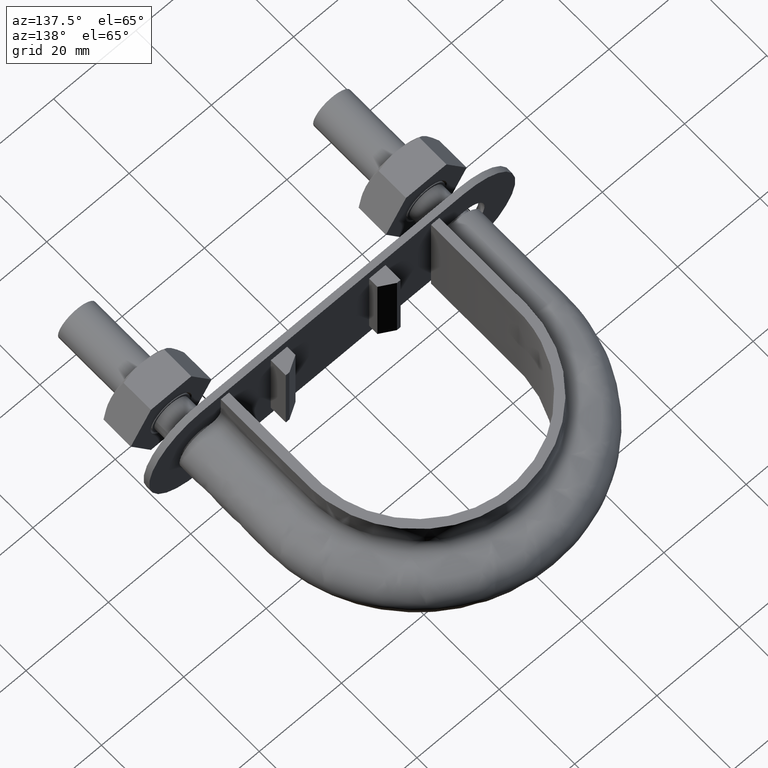
[diagram: clean part render]
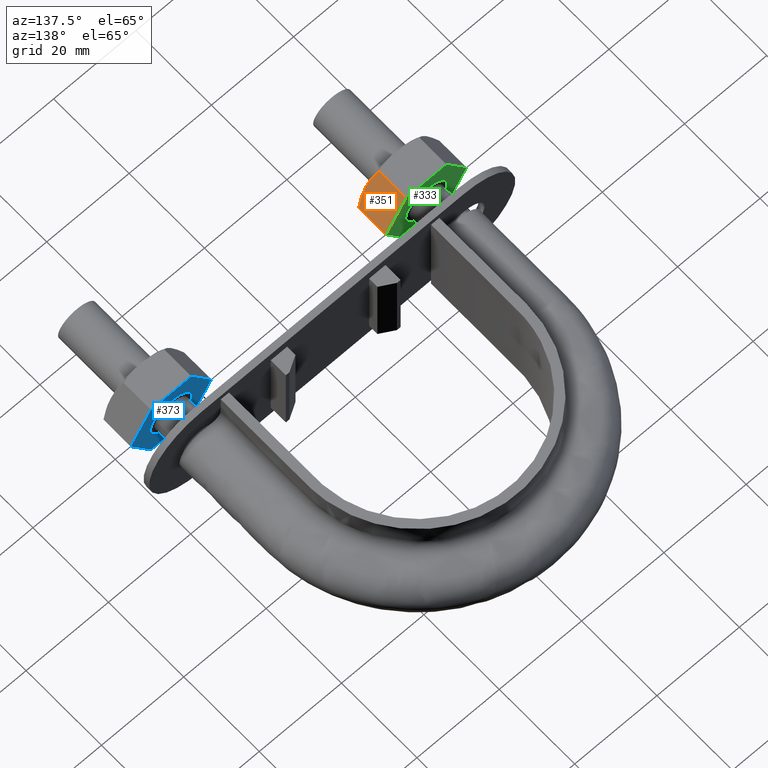
[diagram: same view with three faces highlighted in distinct colors, each labeled with its STEP entity id]
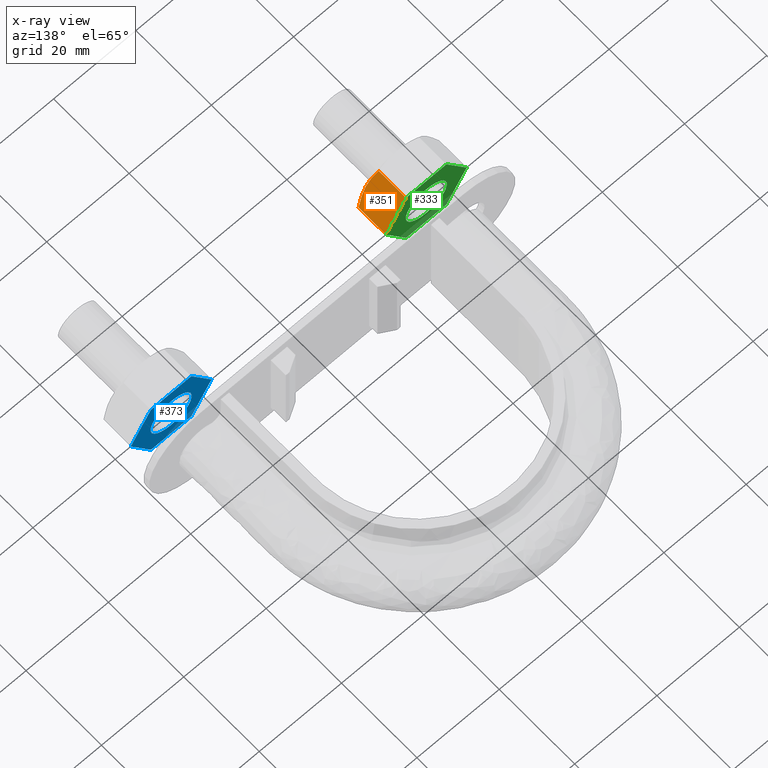
[diagram: x-ray of the same camera — body ghosted, the three highlighted faces saturated]
A machine part, auxiliary view with three faces highlighted in distinct colors.
The next image is the same camera in x-ray (body ghosted, the three faces saturated) — at least one of them is partly hidden behind the body in this view.
Their STEP definitions:

[orange] entity #351 — the highlighted planar face has unit normal (-0.866, 0, -0.5).
#351 = ADVANCED_FACE( '', ( #573 ), #574, .F. );
#573 = FACE_OUTER_BOUND( '', #1651, .T. );
#574 = PLANE( '', #1652 );
#1651 = EDGE_LOOP( '', ( #2314, #2315, #2316, #2317, #2318 ) );
#1652 = AXIS2_PLACEMENT_3D( '', #2319, #2320, #2321 );
#2314 = ORIENTED_EDGE( '', *, *, #2678, .F. );
#2315 = ORIENTED_EDGE( '', *, *, #2694, .F. );
#2316 = ORIENTED_EDGE( '', *, *, #2695, .F. );
#2317 = ORIENTED_EDGE( '', *, *, #2656, .F. );
#2318 = ORIENTED_EDGE( '', *, *, #2691, .F. );
#2319 = CARTESIAN_POINT( '', ( -26.0925227119590, 25.0000000000000, 8.50000000003917 ) );
#2320 = DIRECTION( '', ( -0.866025403780351, 3.65183836638166E-016, -0.500000000007081 ) );
#2321 = DIRECTION( '', ( -0.500000000007081, 2.02717751828322E-032, 0.866025403780351 ) );
#2656 = EDGE_CURVE( '', #2984, #2986, #2987, .T. );
#2678 = EDGE_CURVE( '', #3023, #3025, #3026, .T. );
#2691 = EDGE_CURVE( '', #3025, #2984, #3042, .T. );
#2694 = EDGE_CURVE( '', #3046, #3023, #3047, .T. );
#2695 = EDGE_CURVE( '', #2986, #3046, #3048, .F. );
#2984 = VERTEX_POINT( '', #3694 );
#2986 = VERTEX_POINT( '', #3696 );
#2987 = LINE( '', #3697, #3698 );
#3023 = VERTEX_POINT( '', #3765 );
#3025 = VERTEX_POINT( '', #3767 );
#3026 = B_SPLINE_CURVE_WITH_KNOTS( '', 3, ( #3768, #3769, #3770, #3771, #3772, #3773 ), .UNSPECIFIED., .F., .F., ( 4, 2, 4 ), ( 7.21945144176340E-017, 0.00246745482903722, 0.00493490965807436 ), .UNSPECIFIED. );
#3042 = LINE( '', #3804, #3805 );
#3046 = VERTEX_POINT( '', #3810 );
#3047 = B_SPLINE_CURVE_WITH_KNOTS( '', 3, ( #3811, #3812, #3813, #3814, #3815, #3816 ), .UNSPECIFIED., .F., .F., ( 4, 2, 4 ), ( 1.43126502519881E-015, 0.00246745482903747, 0.00493490965807351 ), .UNSPECIFIED. );
#3048 = LINE( '', #3817, #3818 );
#3694 = CARTESIAN_POINT( '', ( -26.0775337475558, 25.0000000000000, 8.47403835214051 ) );
#3696 = CARTESIAN_POINT( '', ( -21.2000343881810, 25.0000000000000, 0.0259616479782470 ) );
#3697 = CARTESIAN_POINT( '', ( -21.1887840678338, 25.0000000000000, 0.00647552153582379 ) );
#3698 = VECTOR( '', #4182, 1000.00000000000 );
#3765 = CARTESIAN_POINT( '', ( -23.6387840678677, 17.0000000000007, 4.25000000005976 ) );
#3767 = CARTESIAN_POINT( '', ( -26.0775337475555, 17.7505553499475, 8.47403835213990 ) );
#3768 = CARTESIAN_POINT( '', ( -23.6387840678684, 17.0000000000003, 4.25000000005935 ) );
#3769 = CARTESIAN_POINT( '', ( -24.0548670429699, 17.0000000000003, 4.97067685308585 ) );
#3770 = CARTESIAN_POINT( '', ( -24.4654371917234, 17.0716504305294, 5.68180521078460 ) );
#3771 = CARTESIAN_POINT( '', ( -25.2775056557238, 17.3328582843713, 7.08834904963123 ) );
#3772 = CARTESIAN_POINT( '', ( -25.6790699212365, 17.5215585493663, 7.78387875999016 ) );
#3773 = CARTESIAN_POINT( '', ( -26.0775337475551, 17.7505553499473, 8.47403835213929 ) );
#3804 = CARTESIAN_POINT( '', ( -26.0775337475558, 25.0000000000000, 8.47403835214052 ) );
#3805 = VECTOR( '', #4239, 1000.00000000000 );
#3810 = CARTESIAN_POINT( '', ( -21.2000343881810, 17.7505553499477, 0.0259616479782443 ) );
#3811 = CARTESIAN_POINT( '', ( -21.2000343881817, 17.7505553499473, 0.0259616479794476 ) );
#3812 = CARTESIAN_POINT( '', ( -21.5984982145002, 17.5215585493664, 0.716121240128273 ) );
#3813 = CARTESIAN_POINT( '', ( -22.0000624800138, 17.3328582843710, 1.41165095048873 ) );
#3814 = CARTESIAN_POINT( '', ( -22.8121309440138, 17.0716504305293, 2.81819478933474 ) );
#3815 = CARTESIAN_POINT( '', ( -23.2227010927672, 17.0000000000003, 3.52932314703317 ) );
#3816 = CARTESIAN_POINT( '', ( -23.6387840678684, 17.0000000000003, 4.25000000005935 ) );
#3817 = CARTESIAN_POINT( '', ( -21.2000343881810, 25.0000000000000, 0.0259616479782471 ) );
#3818 = VECTOR( '', #4244, 1000.00000000000 );
#4182 = DIRECTION( '', ( 0.500000000007081, 1.42674417626280E-016, -0.866025403780351 ) );
#4239 = DIRECTION( '', ( 2.44921270764475E-016, 1.00000000000000, 3.06151588455594E-016 ) );
#4244 = DIRECTION( '', ( 2.44921270764475E-016, 1.00000000000000, 3.06151588455594E-016 ) );

[blue] entity #373 — the highlighted planar face has unit normal (-0, -1, -0).
#373 = ADVANCED_FACE( '', ( #620, #621 ), #622, .F. );
#620 = FACE_OUTER_BOUND( '', #1698, .T. );
#621 = FACE_BOUND( '', #1699, .T. );
#622 = PLANE( '', #1700 );
#1698 = EDGE_LOOP( '', ( #2469, #2470, #2471, #2472, #2473, #2474, #2475, #2476, #2477, #2478, #2479, #2480 ) );
#1699 = EDGE_LOOP( '', ( #2481 ) );
#1700 = AXIS2_PLACEMENT_3D( '', #2482, #2483, #2484 );
#2469 = ORIENTED_EDGE( '', *, *, #2745, .T. );
#2470 = ORIENTED_EDGE( '', *, *, #2747, .T. );
#2471 = ORIENTED_EDGE( '', *, *, #2727, .T. );
#2472 = ORIENTED_EDGE( '', *, *, #2742, .T. );
#2473 = ORIENTED_EDGE( '', *, *, #2725, .T. );
#2474 = ORIENTED_EDGE( '', *, *, #2722, .T. );
#2475 = ORIENTED_EDGE( '', *, *, #2748, .T. );
#2476 = ORIENTED_EDGE( '', *, *, #2711, .T. );
#2477 = ORIENTED_EDGE( '', *, *, #2705, .T. );
#2478 = ORIENTED_EDGE( '', *, *, #2733, .T. );
#2479 = ORIENTED_EDGE( '', *, *, #2738, .T. );
#2480 = ORIENTED_EDGE( '', *, *, #2736, .T. );
#2481 = ORIENTED_EDGE( '', *, *, #2746, .F. );
#2482 = CARTESIAN_POINT( '', ( 26.1000000000707, 25.0000000000000, -8.48704895712659 ) );
#2483 = DIRECTION( '', ( -2.44921270764475E-016, -1.00000000000000, -3.06151588455594E-016 ) );
#2484 = DIRECTION( '', ( 0.000000000000000, 3.06151588455594E-016, -1.00000000000000 ) );
#2705 = EDGE_CURVE( '', #3066, #3064, #3067, .F. );
#2711 = EDGE_CURVE( '', #3076, #3066, #3077, .T. );
#2722 = EDGE_CURVE( '', #3097, #3095, #3098, .T. );
#2725 = EDGE_CURVE( '', #3102, #3097, #3103, .F. );
#2727 = EDGE_CURVE( '', #3105, #3106, #3107, .F. );
#2733 = EDGE_CURVE( '', #3064, #3114, #3116, .T. );
#2736 = EDGE_CURVE( '', #3121, #3119, #3122, .T. );
#2738 = EDGE_CURVE( '', #3114, #3121, #3124, .F. );
#2742 = EDGE_CURVE( '', #3106, #3102, #3128, .T. );
#2745 = EDGE_CURVE( '', #3119, #3130, #3132, .F. );
#2746 = EDGE_CURVE( '', #3133, #3133, #3134, .F. );
#2747 = EDGE_CURVE( '', #3130, #3105, #3135, .T. );
#2748 = EDGE_CURVE( '', #3095, #3076, #3136, .F. );
#3064 = VERTEX_POINT( '', #3850 );
#3066 = VERTEX_POINT( '', #3853 );
#3067 = CIRCLE( '', #3854, 9.80000000000000 );
#3076 = VERTEX_POINT( '', #3879 );
#3077 = LINE( '', #3880, #3881 );
#3095 = VERTEX_POINT( '', #3920 );
#3097 = VERTEX_POINT( '', #3923 );
#3098 = LINE( '', #3924, #3925 );
#3102 = VERTEX_POINT( '', #3930 );
#3103 = CIRCLE( '', #3931, 9.80000000000000 );
#3105 = VERTEX_POINT( '', #3934 );
#3106 = VERTEX_POINT( '', #3935 );
#3107 = CIRCLE( '', #3936, 9.80000000000000 );
#3114 = VERTEX_POINT( '', #3950 );
#3116 = LINE( '', #3953, #3954 );
#3119 = VERTEX_POINT( '', #3962 );
#3121 = VERTEX_POINT( '', #3965 );
#3122 = LINE( '', #3966, #3967 );
#3124 = CIRCLE( '', #3970, 9.80000000000000 );
#3128 = LINE( '', #3979, #3980 );
#3130 = VERTEX_POINT( '', #3982 );
#3132 = CIRCLE( '', #3985, 9.80000000000000 );
#3133 = VERTEX_POINT( '', #3986 );
#3134 = CIRCLE( '', #3987, 4.99999999999990 );
#3135 = LINE( '', #3988, #3989 );
#3136 = CIRCLE( '', #3990, 9.80000000000000 );
#3850 = CARTESIAN_POINT( '', ( 35.8774993593745, 25.0000000000000, -8.49999999995891 ) );
#3853 = CARTESIAN_POINT( '', ( 35.9224662525862, 25.0000000000000, -8.47403835205802 ) );
#3854 = AXIS2_PLACEMENT_3D( '', #4259, #4260, #4261 );
#3879 = CARTESIAN_POINT( '', ( 40.7999656118194, 25.0000000000000, -0.0259616478206675 ) );
#3880 = CARTESIAN_POINT( '', ( 33.4612159322735, 25.0000000000000, -12.7370489570659 ) );
#3881 = VECTOR( '', #4266, 1000.00000000000 );
#3920 = CARTESIAN_POINT( '', ( 40.7999656118190, 25.0000000000000, 0.0259616479782469 ) );
#3923 = CARTESIAN_POINT( '', ( 35.9224662524442, 25.0000000000000, 8.47403835214051 ) );
#3924 = CARTESIAN_POINT( '', ( 40.8112159321662, 25.0000000000000, 0.00647552153582205 ) );
#3925 = VECTOR( '', #4281, 1000.00000000000 );
#3930 = CARTESIAN_POINT( '', ( 35.8774993592328, 25.0000000000000, 8.50000000004020 ) );
#3931 = AXIS2_PLACEMENT_3D( '', #4286, #4287, #4288 );
#3934 = CARTESIAN_POINT( '', ( 26.0775337474138, 25.0000000000000, 8.47403835205803 ) );
#3935 = CARTESIAN_POINT( '', ( 26.1225006406259, 25.0000000000000, 8.49999999995917 ) );
#3936 = AXIS2_PLACEMENT_3D( '', #4290, #4291, #4292 );
#3950 = CARTESIAN_POINT( '', ( 26.1225006406255, 25.0000000000000, -8.49999999995891 ) );
#3953 = CARTESIAN_POINT( '', ( 26.1000000000707, 25.0000000000000, -8.49999999995891 ) );
#3954 = VECTOR( '', #4299, 1000.00000000000 );
#3962 = CARTESIAN_POINT( '', ( 21.2000343881810, 25.0000000000000, -0.0259616479782296 ) );
#3965 = CARTESIAN_POINT( '', ( 26.0775337475558, 25.0000000000000, -8.47403835214050 ) );
#3966 = CARTESIAN_POINT( '', ( 26.0887840679030, 25.0000000000000, -8.49352447858293 ) );
#3967 = VECTOR( '', #4301, 1000.00000000000 );
#3970 = AXIS2_PLACEMENT_3D( '', #4303, #4304, #4305 );
#3979 = CARTESIAN_POINT( '', ( 26.0999999999296, 25.0000000000000, 8.49999999995898 ) );
#3980 = VECTOR( '', #4312, 1000.00000000000 );
#3982 = CARTESIAN_POINT( '', ( 21.2000343881806, 25.0000000000000, 0.0259616478206805 ) );
#3985 = AXIS2_PLACEMENT_3D( '', #4317, #4318, #4319 );
#3986 = CARTESIAN_POINT( '', ( 31.0000000000000, 25.0000000000000, -4.99999999999989 ) );
#3987 = AXIS2_PLACEMENT_3D( '', #4320, #4321, #4322 );
#3988 = CARTESIAN_POINT( '', ( 18.7387840678679, 25.0000000000000, -4.23704895718723 ) );
#3989 = VECTOR( '', #4323, 1000.00000000000 );
#3990 = AXIS2_PLACEMENT_3D( '', #4324, #4325, #4326 );
#4259 = CARTESIAN_POINT( '', ( 31.0000000000000, 25.0000000000000, 7.85278824388600E-015 ) );
#4260 = DIRECTION( '', ( -2.44921270764475E-016, -1.00000000000000, -3.06151588455594E-016 ) );
#4261 = DIRECTION( '', ( 0.000000000000000, 3.06151588455594E-016, -1.00000000000000 ) );
#4266 = DIRECTION( '', ( -0.499999999992863, 3.87595688393254E-016, -0.866025403788559 ) );
#4281 = DIRECTION( '', ( 0.500000000007081, 1.42674417626280E-016, -0.866025403780351 ) );
#4286 = CARTESIAN_POINT( '', ( 31.0000000000000, 25.0000000000000, 7.85278824388600E-015 ) );
#4287 = DIRECTION( '', ( -2.44921270764475E-016, -1.00000000000000, -3.06151588455594E-016 ) );
#4288 = DIRECTION( '', ( 0.000000000000000, 3.06151588455594E-016, -1.00000000000000 ) );
#4290 = CARTESIAN_POINT( '', ( 31.0000000000000, 25.0000000000000, 7.85278824388600E-015 ) );
#4291 = DIRECTION( '', ( -2.44921270764475E-016, -1.00000000000000, -3.06151588455594E-016 ) );
#4292 = DIRECTION( '', ( 0.000000000000000, 3.06151588455594E-016, -1.00000000000000 ) );
#4299 = DIRECTION( '', ( -1.00000000000000, 2.44921270764475E-016, 7.49830191904503E-032 ) );
#4301 = DIRECTION( '', ( -0.500000000007081, -1.42674417626280E-016, 0.866025403780351 ) );
#4303 = CARTESIAN_POINT( '', ( 31.0000000000000, 25.0000000000000, 7.85278824388600E-015 ) );
#4304 = DIRECTION( '', ( -2.44921270764475E-016, -1.00000000000000, -3.06151588455594E-016 ) );
#4305 = DIRECTION( '', ( 0.000000000000000, 3.06151588455594E-016, -1.00000000000000 ) );
#4312 = DIRECTION( '', ( 1.00000000000000, -2.44921270767018E-016, 8.30657764794306E-012 ) );
#4317 = CARTESIAN_POINT( '', ( 31.0000000000000, 25.0000000000000, 7.85278824388600E-015 ) );
#4318 = DIRECTION( '', ( -2.44921270764475E-016, -1.00000000000000, -3.06151588455594E-016 ) );
#4319 = DIRECTION( '', ( 0.000000000000000, 3.06151588455594E-016, -1.00000000000000 ) );
#4320 = CARTESIAN_POINT( '', ( 31.0000000000000, 25.0000000000000, 7.85278824388600E-015 ) );
#4321 = DIRECTION( '', ( -2.44921270764475E-016, -1.00000000000000, -3.06151588455594E-016 ) );
#4322 = DIRECTION( '', ( 0.000000000000000, 3.06151588455594E-016, -1.00000000000000 ) );
#4323 = DIRECTION( '', ( 0.499999999992863, -3.87595688393254E-016, 0.866025403788559 ) );
#4324 = CARTESIAN_POINT( '', ( 31.0000000000000, 25.0000000000000, 7.85278824388600E-015 ) );
#4325 = DIRECTION( '', ( -2.44921270764475E-016, -1.00000000000000, -3.06151588455594E-016 ) );
#4326 = DIRECTION( '', ( 0.000000000000000, 3.06151588455594E-016, -1.00000000000000 ) );

[green] entity #333 — the highlighted planar face has unit normal (-0, -1, -0).
#333 = ADVANCED_FACE( '', ( #532, #533 ), #534, .F. );
#532 = FACE_OUTER_BOUND( '', #1610, .T. );
#533 = FACE_BOUND( '', #1611, .T. );
#534 = PLANE( '', #1612 );
#1610 = EDGE_LOOP( '', ( #2178, #2179, #2180, #2181, #2182, #2183, #2184, #2185, #2186, #2187, #2188, #2189 ) );
#1611 = EDGE_LOOP( '', ( #2190 ) );
#1612 = AXIS2_PLACEMENT_3D( '', #2191, #2192, #2193 );
#2178 = ORIENTED_EDGE( '', *, *, #2651, .T. );
#2179 = ORIENTED_EDGE( '', *, *, #2652, .T. );
#2180 = ORIENTED_EDGE( '', *, *, #2653, .T. );
#2181 = ORIENTED_EDGE( '', *, *, #2654, .T. );
#2182 = ORIENTED_EDGE( '', *, *, #2655, .T. );
#2183 = ORIENTED_EDGE( '', *, *, #2656, .T. );
#2184 = ORIENTED_EDGE( '', *, *, #2657, .T. );
#2185 = ORIENTED_EDGE( '', *, *, #2658, .T. );
#2186 = ORIENTED_EDGE( '', *, *, #2659, .T. );
#2187 = ORIENTED_EDGE( '', *, *, #2660, .T. );
#2188 = ORIENTED_EDGE( '', *, *, #2661, .T. );
#2189 = ORIENTED_EDGE( '', *, *, #2662, .T. );
#2190 = ORIENTED_EDGE( '', *, *, #2663, .F. );
#2191 = CARTESIAN_POINT( '', ( -35.8999999999293, 25.0000000000000, -8.48704895712659 ) );
#2192 = DIRECTION( '', ( -2.44921270764475E-016, -1.00000000000000, -3.06151588455594E-016 ) );
#2193 = DIRECTION( '', ( 0.000000000000000, 3.06151588455594E-016, -1.00000000000000 ) );
#2651 = EDGE_CURVE( '', #2975, #2976, #2977, .F. );
#2652 = EDGE_CURVE( '', #2976, #2978, #2979, .T. );
#2653 = EDGE_CURVE( '', #2978, #2980, #2981, .F. );
#2654 = EDGE_CURVE( '', #2980, #2982, #2983, .T. );
#2655 = EDGE_CURVE( '', #2982, #2984, #2985, .F. );
#2656 = EDGE_CURVE( '', #2984, #2986, #2987, .T. );
#2657 = EDGE_CURVE( '', #2986, #2988, #2989, .F. );
#2658 = EDGE_CURVE( '', #2988, #2990, #2991, .T. );
#2659 = EDGE_CURVE( '', #2990, #2992, #2993, .F. );
#2660 = EDGE_CURVE( '', #2992, #2994, #2995, .T. );
#2661 = EDGE_CURVE( '', #2994, #2996, #2997, .F. );
#2662 = EDGE_CURVE( '', #2996, #2975, #2998, .T. );
#2663 = EDGE_CURVE( '', #2999, #2999, #3000, .F. );
#2975 = VERTEX_POINT( '', #3683 );
#2976 = VERTEX_POINT( '', #3684 );
#2977 = CIRCLE( '', #3685, 9.80000000000000 );
#2978 = VERTEX_POINT( '', #3686 );
#2979 = LINE( '', #3687, #3688 );
#2980 = VERTEX_POINT( '', #3689 );
#2981 = CIRCLE( '', #3690, 9.80000000000000 );
#2982 = VERTEX_POINT( '', #3691 );
#2983 = LINE( '', #3692, #3693 );
#2984 = VERTEX_POINT( '', #3694 );
#2985 = CIRCLE( '', #3695, 9.80000000000000 );
#2986 = VERTEX_POINT( '', #3696 );
#2987 = LINE( '', #3697, #3698 );
#2988 = VERTEX_POINT( '', #3699 );
#2989 = CIRCLE( '', #3700, 9.80000000000000 );
#2990 = VERTEX_POINT( '', #3701 );
#2991 = LINE( '', #3702, #3703 );
#2992 = VERTEX_POINT( '', #3704 );
#2993 = CIRCLE( '', #3705, 9.80000000000000 );
#2994 = VERTEX_POINT( '', #3706 );
#2995 = LINE( '', #3707, #3708 );
#2996 = VERTEX_POINT( '', #3709 );
#2997 = CIRCLE( '', #3710, 9.80000000000000 );
#2998 = LINE( '', #3711, #3712 );
#2999 = VERTEX_POINT( '', #3713 );
#3000 = CIRCLE( '', #3714, 4.99999999999990 );
#3683 = CARTESIAN_POINT( '', ( -40.7999656118190, 25.0000000000000, -0.0259616479782298 ) );
#3684 = CARTESIAN_POINT( '', ( -40.7999656118194, 25.0000000000000, 0.0259616478206785 ) );
#3685 = AXIS2_PLACEMENT_3D( '', #4171, #4172, #4173 );
#3686 = CARTESIAN_POINT( '', ( -35.9224662525862, 25.0000000000000, 8.47403835205803 ) );
#3687 = CARTESIAN_POINT( '', ( -43.2612159321321, 25.0000000000000, -4.23704895718723 ) );
#3688 = VECTOR( '', #4174, 1000.00000000000 );
#3689 = CARTESIAN_POINT( '', ( -35.8774993593740, 25.0000000000000, 8.49999999995917 ) );
#3690 = AXIS2_PLACEMENT_3D( '', #4175, #4176, #4177 );
#3691 = CARTESIAN_POINT( '', ( -26.1225006407672, 25.0000000000000, 8.50000000004020 ) );
#3692 = CARTESIAN_POINT( '', ( -35.9000000000704, 25.0000000000000, 8.49999999995898 ) );
#3693 = VECTOR( '', #4178, 1000.00000000000 );
#3694 = CARTESIAN_POINT( '', ( -26.0775337475558, 25.0000000000000, 8.47403835214051 ) );
#3695 = AXIS2_PLACEMENT_3D( '', #4179, #4180, #4181 );
#3696 = CARTESIAN_POINT( '', ( -21.2000343881810, 25.0000000000000, 0.0259616479782470 ) );
#3697 = CARTESIAN_POINT( '', ( -21.1887840678338, 25.0000000000000, 0.00647552153582379 ) );
#3698 = VECTOR( '', #4182, 1000.00000000000 );
#3699 = CARTESIAN_POINT( '', ( -21.2000343881806, 25.0000000000000, -0.0259616478206649 ) );
#3700 = AXIS2_PLACEMENT_3D( '', #4183, #4184, #4185 );
#3701 = CARTESIAN_POINT( '', ( -26.0775337474138, 25.0000000000000, -8.47403835205802 ) );
#3702 = CARTESIAN_POINT( '', ( -28.5387840677265, 25.0000000000000, -12.7370489570659 ) );
#3703 = VECTOR( '', #4186, 1000.00000000000 );
#3704 = CARTESIAN_POINT( '', ( -26.1225006406255, 25.0000000000000, -8.49999999995891 ) );
#3705 = AXIS2_PLACEMENT_3D( '', #4187, #4188, #4189 );
#3706 = CARTESIAN_POINT( '', ( -35.8774993593745, 25.0000000000000, -8.49999999995891 ) );
#3707 = CARTESIAN_POINT( '', ( -35.8999999999293, 25.0000000000000, -8.49999999995891 ) );
#3708 = VECTOR( '', #4190, 1000.00000000000 );
#3709 = CARTESIAN_POINT( '', ( -35.9224662524442, 25.0000000000000, -8.47403835214050 ) );
#3710 = AXIS2_PLACEMENT_3D( '', #4191, #4192, #4193 );
#3711 = CARTESIAN_POINT( '', ( -35.9112159320970, 25.0000000000000, -8.49352447858293 ) );
#3712 = VECTOR( '', #4194, 1000.00000000000 );
#3713 = CARTESIAN_POINT( '', ( -31.0000000000000, 25.0000000000000, -4.99999999999989 ) );
#3714 = AXIS2_PLACEMENT_3D( '', #4195, #4196, #4197 );
#4171 = CARTESIAN_POINT( '', ( -31.0000000000000, 25.0000000000000, 7.85278824388600E-015 ) );
#4172 = DIRECTION( '', ( -2.44921270764475E-016, -1.00000000000000, -3.06151588455594E-016 ) );
#4173 = DIRECTION( '', ( 0.000000000000000, 3.06151588455594E-016, -1.00000000000000 ) );
#4174 = DIRECTION( '', ( 0.499999999992863, -3.87595688393254E-016, 0.866025403788559 ) );
#4175 = CARTESIAN_POINT( '', ( -31.0000000000000, 25.0000000000000, 7.85278824388600E-015 ) );
#4176 = DIRECTION( '', ( -2.44921270764475E-016, -1.00000000000000, -3.06151588455594E-016 ) );
#4177 = DIRECTION( '', ( 0.000000000000000, 3.06151588455594E-016, -1.00000000000000 ) );
#4178 = DIRECTION( '', ( 1.00000000000000, -2.44921270767018E-016, 8.30657764794306E-012 ) );
#4179 = CARTESIAN_POINT( '', ( -31.0000000000000, 25.0000000000000, 7.85278824388600E-015 ) );
#4180 = DIRECTION( '', ( -2.44921270764475E-016, -1.00000000000000, -3.06151588455594E-016 ) );
#4181 = DIRECTION( '', ( 0.000000000000000, 3.06151588455594E-016, -1.00000000000000 ) );
#4182 = DIRECTION( '', ( 0.500000000007081, 1.42674417626280E-016, -0.866025403780351 ) );
#4183 = CARTESIAN_POINT( '', ( -31.0000000000000, 25.0000000000000, 7.85278824388600E-015 ) );
#4184 = DIRECTION( '', ( -2.44921270764475E-016, -1.00000000000000, -3.06151588455594E-016 ) );
#4185 = DIRECTION( '', ( 0.000000000000000, 3.06151588455594E-016, -1.00000000000000 ) );
#4186 = DIRECTION( '', ( -0.499999999992863, 3.87595688393254E-016, -0.866025403788559 ) );
#4187 = CARTESIAN_POINT( '', ( -31.0000000000000, 25.0000000000000, 7.85278824388600E-015 ) );
#4188 = DIRECTION( '', ( -2.44921270764475E-016, -1.00000000000000, -3.06151588455594E-016 ) );
#4189 = DIRECTION( '', ( 0.000000000000000, 3.06151588455594E-016, -1.00000000000000 ) );
#4190 = DIRECTION( '', ( -1.00000000000000, 2.44921270764475E-016, 7.49830191904503E-032 ) );
#4191 = CARTESIAN_POINT( '', ( -31.0000000000000, 25.0000000000000, 7.85278824388600E-015 ) );
#4192 = DIRECTION( '', ( -2.44921270764475E-016, -1.00000000000000, -3.06151588455594E-016 ) );
#4193 = DIRECTION( '', ( 0.000000000000000, 3.06151588455594E-016, -1.00000000000000 ) );
#4194 = DIRECTION( '', ( -0.500000000007081, -1.42674417626280E-016, 0.866025403780351 ) );
#4195 = CARTESIAN_POINT( '', ( -31.0000000000000, 25.0000000000000, 7.85278824388600E-015 ) );
#4196 = DIRECTION( '', ( -2.44921270764475E-016, -1.00000000000000, -3.06151588455594E-016 ) );
#4197 = DIRECTION( '', ( 0.000000000000000, 3.06151588455594E-016, -1.00000000000000 ) );